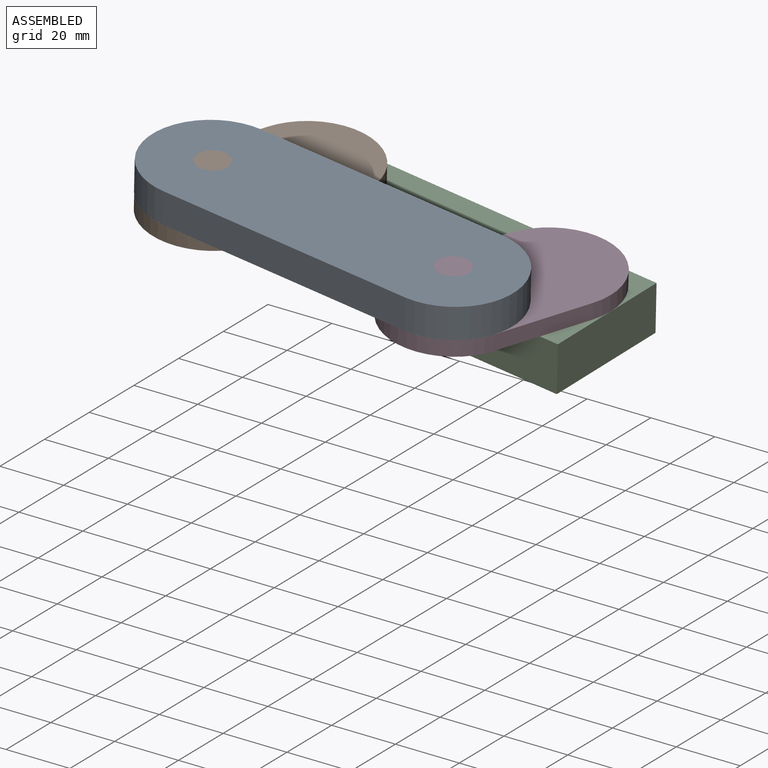
[diagram: assembled view]
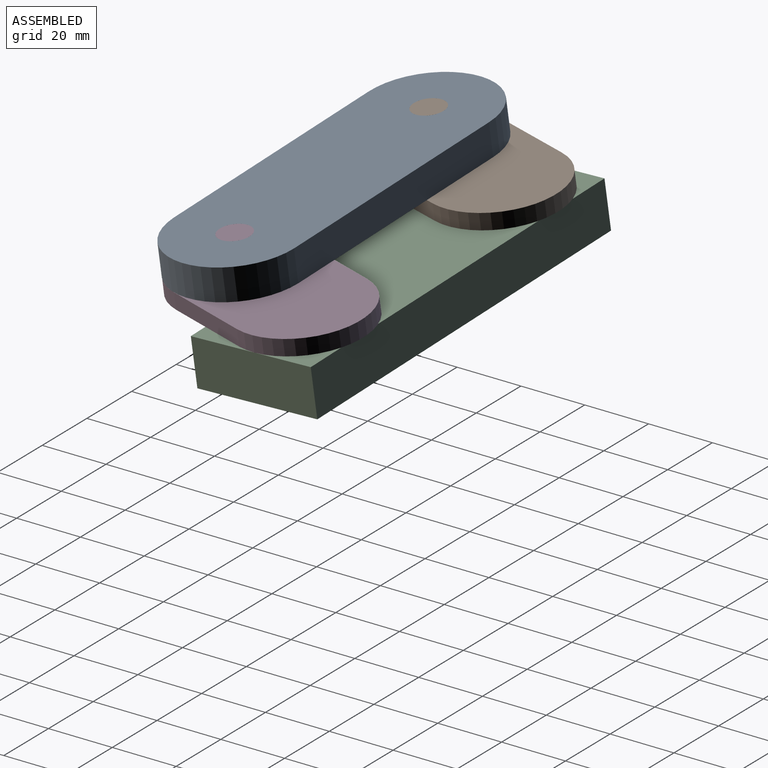
[diagram: assembled view, second angle]
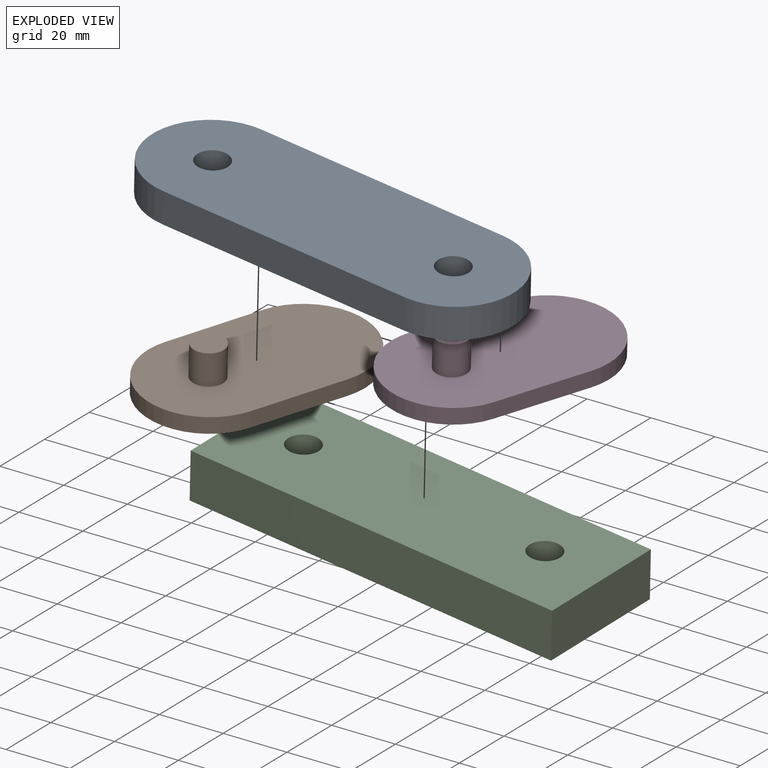
[diagram: exploded view]
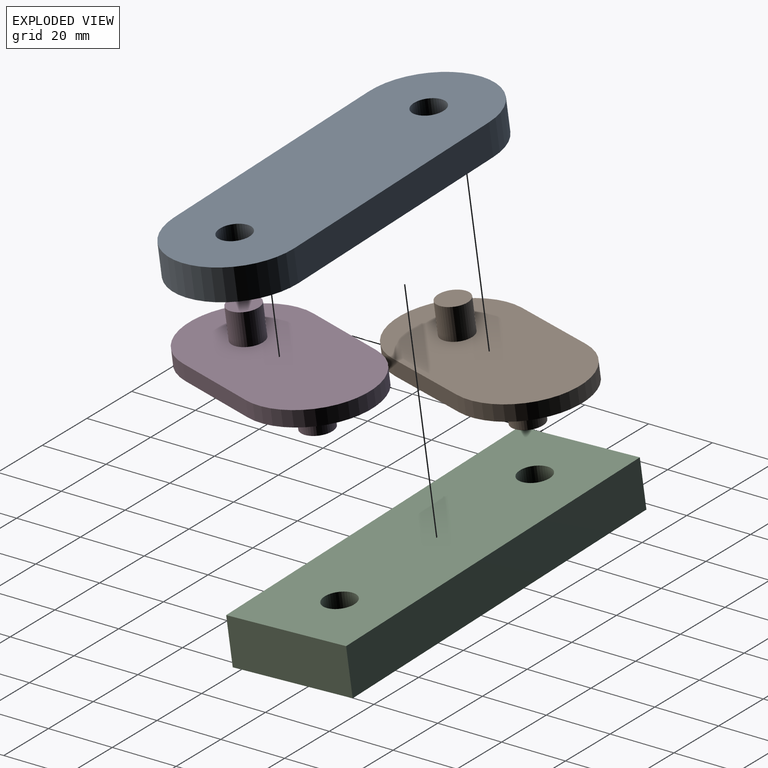
[diagram: exploded view, second angle]
ASSEMBLY  parts=4 mates=4
PART A: 8 faces, bbox 119.7x40x10 mm
  f0: cylinder r=20mm len=40mm, axis (0,0,-1), area 628.3mm2, adj f1,f3,f4,f5
  f1: plane 80x10mm, normal (0,-1,0), area 800mm2, adj f0,f2,f4,f5
  f2: cylinder r=20mm len=39.99mm, axis (0,0,-1), area 621.5mm2, adj f1,f3,f4,f5
  f3: plane 80x10mm, normal (0,1,0), area 800mm2, adj f0,f2,f4,f5
  f4: plane 119.66x40mm, normal (0,0,1), area 4285.8mm2, adj f0,f1,f2,f3,f6,f7
  f5: plane 119.66x40mm, normal (0,0,-1), area 4285.8mm2, adj f0,f1,f2,f3,f6,f7
  f6: cylinder r=5mm len=10mm, axis (0,0,1), area 314.2mm2, adj f4,f5
  f7: cylinder r=5mm len=10mm, axis (0,0,1), area 314.2mm2, adj f4,f5
PART B: 10 faces, bbox 70x40x25 mm
  f0: cylinder r=20mm len=40mm, axis (0,0,-1), area 314.2mm2, adj f1,f3,f4,f5
  f1: plane 30x5mm, normal (0,-1,0), area 150mm2, adj f0,f2,f4,f5
  f2: cylinder r=20mm len=40mm, axis (0,0,-1), area 314.2mm2, adj f1,f3,f4,f5
  f3: plane 30x5mm, normal (0,1,0), area 150mm2, adj f0,f2,f4,f5
  f4: plane 70x40mm, normal (0,0,1), area 2378.1mm2, adj f0,f1,f2,f3,f6
  f5: plane 70x40mm, normal (0,0,-1), area 2378.1mm2, adj f0,f1,f2,f3,f8
  f6: cylinder r=5mm len=10mm, axis (0,0,-1), area 314.2mm2, adj f4,f7
  f7: plane 10x10mm, normal (0,0,1), area 78.5mm2, adj f6
  f8: cylinder r=5mm len=10mm, axis (0,0,1), area 314.2mm2, adj f5,f9
  f9: plane 10x10mm, normal (0,0,-1), area 78.5mm2, adj f8
PART C: 8 faces, bbox 120x40x15 mm
  f0: plane 120x40mm, normal (0,0,1), area 4642.9mm2, adj f1,f3,f4,f5,f6,f7
  f1: plane 40x15mm, normal (-1,0,0), area 600mm2, adj f0,f2,f4,f5
  f2: plane 120x40mm, normal (0,0,-1), area 4642.9mm2, adj f1,f3,f4,f5,f6,f7
  f3: plane 40x15mm, normal (1,0,0), area 600mm2, adj f0,f2,f4,f5
  f4: plane 120x15mm, normal (0,-1,0), area 1800mm2, adj f0,f1,f2,f3
  f5: plane 120x15mm, normal (0,1,0), area 1800mm2, adj f0,f1,f2,f3
  f6: cylinder r=5mm len=15mm, axis (0,0,1), area 471.2mm2, adj f0,f2
  f7: cylinder r=5mm len=15mm, axis (0,0,1), area 471.2mm2, adj f0,f2
PART D: same geometry as B
PLACE A rot(axis=(0.59,0.61,-0.53),7.7deg) t=(-43.28,23.27,-62.07)mm
PLACE B rot(axis=(-0.01,0.07,-1),111.7deg) t=(1.77,84.56,-65.64)mm
PLACE C rot(axis=(0.58,0.6,-0.55),7.8deg) t=(-43.22,42.03,-80.66)mm
PLACE D rot(axis=(-0.01,0.07,-1),112.4deg) t=(82.04,78.77,-72.52)mm
MATE revolute A.f0 <-> B.f2  axis (0.08,-0.08,0.99) through (-33.5,-8.3,-55.39)mm
MATE revolute D.f2 <-> A.f2  axis (-0.08,0.08,-0.99) through (45.7,-13.66,-62.14)mm
MATE revolute B.f0 <-> C.f7  axis (0.08,-0.08,0.99) through (-23.61,20.77,-68.88)mm
MATE revolute D.f0 <-> C.f6  axis (0.08,-0.08,0.99) through (55.91,15.28,-75.67)mm
